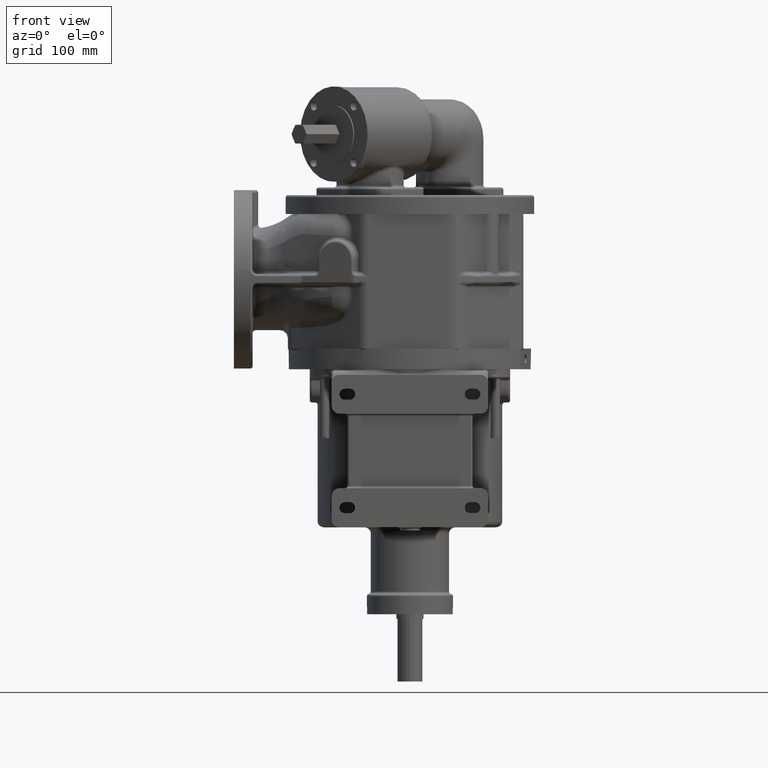
[diagram: clean part render]
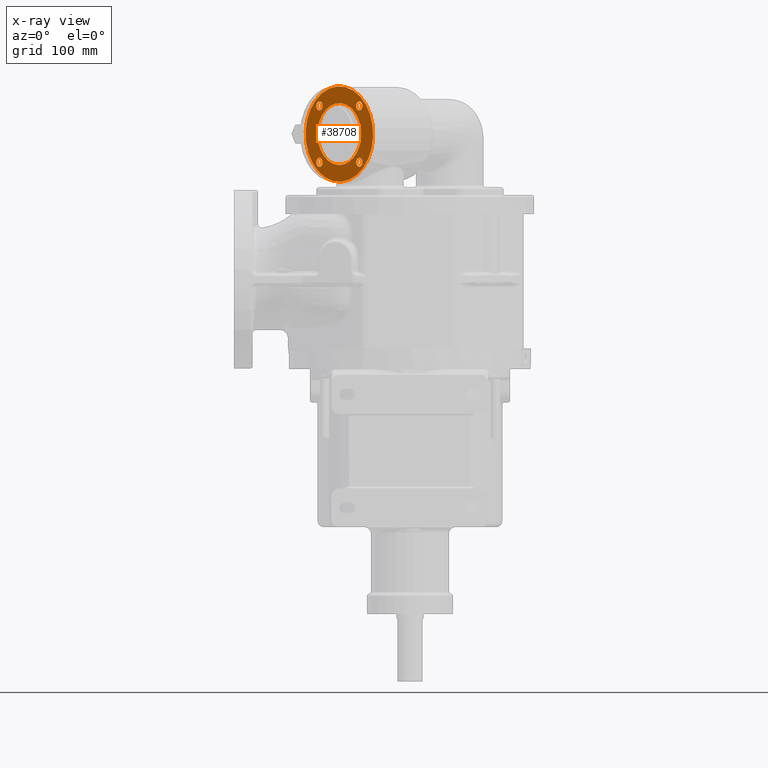
[diagram: x-ray — body ghosted, one internal face saturated and labeled with its STEP entity id]
A machine part, front view, then the same camera in x-ray: the body is ghosted and one INTERNAL B-rep face — a face not visible from any outside direction — is saturated and labeled: STEP entity #38708.
In plain terms, the highlighted planar face has unit normal (0.7071, 0.7071, 0).
Its self-contained STEP definition (entity closure, byte-faithful):
#4786=CARTESIAN_POINT('',(-9.015611460128E1,-9.015611460128E1,2.705E2));
#4787=DIRECTION('',(7.071067811865E-1,7.071067811865E-1,0.E0));
#4788=DIRECTION('',(-5.E-1,5.E-1,-7.071067811865E-1));
#4789=AXIS2_PLACEMENT_3D('',#4786,#4787,#4788);
#4791=CARTESIAN_POINT('',(-9.015611460128E1,-9.015611460128E1,2.705E2));
#4792=DIRECTION('',(-7.071067811865E-1,-7.071067811865E-1,0.E0));
#4793=DIRECTION('',(-5.E-1,5.E-1,-7.071067811865E-1));
#4794=AXIS2_PLACEMENT_3D('',#4791,#4792,#4793);
#4796=CARTESIAN_POINT('',(-1.156561146013E2,-6.465611460128E1,
3.065624458405E2));
#4797=DIRECTION('',(7.071067811865E-1,7.071067811865E-1,0.E0));
#4798=DIRECTION('',(5.E-1,-5.E-1,7.071067811865E-1));
#4799=AXIS2_PLACEMENT_3D('',#4796,#4797,#4798);
#4801=CARTESIAN_POINT('',(-1.156561146013E2,-6.465611460128E1,
3.065624458405E2));
#4802=DIRECTION('',(7.071067811865E-1,7.071067811865E-1,0.E0));
#4803=DIRECTION('',(-5.E-1,5.E-1,-7.071067811866E-1));
#4804=AXIS2_PLACEMENT_3D('',#4801,#4802,#4803);
#4806=CARTESIAN_POINT('',(-6.465611460128E1,-1.156561146013E2,
3.065624458405E2));
#4807=DIRECTION('',(7.071067811865E-1,7.071067811865E-1,0.E0));
#4808=DIRECTION('',(5.E-1,-5.E-1,-7.071067811866E-1));
#4809=AXIS2_PLACEMENT_3D('',#4806,#4807,#4808);
#4811=CARTESIAN_POINT('',(-6.465611460128E1,-1.156561146013E2,
3.065624458405E2));
#4812=DIRECTION('',(7.071067811865E-1,7.071067811865E-1,0.E0));
#4813=DIRECTION('',(-5.E-1,5.E-1,7.071067811865E-1));
#4814=AXIS2_PLACEMENT_3D('',#4811,#4812,#4813);
#4816=CARTESIAN_POINT('',(-6.465611460128E1,-1.156561146013E2,
2.344375541595E2));
#4817=DIRECTION('',(7.071067811865E-1,7.071067811865E-1,0.E0));
#4818=DIRECTION('',(-5.E-1,5.E-1,-7.071067811866E-1));
#4819=AXIS2_PLACEMENT_3D('',#4816,#4817,#4818);
#4821=CARTESIAN_POINT('',(-6.465611460128E1,-1.156561146013E2,
2.344375541595E2));
#4822=DIRECTION('',(7.071067811865E-1,7.071067811865E-1,0.E0));
#4823=DIRECTION('',(5.E-1,-5.E-1,7.071067811865E-1));
#4824=AXIS2_PLACEMENT_3D('',#4821,#4822,#4823);
#4826=CARTESIAN_POINT('',(-1.156561146013E2,-6.465611460128E1,
2.344375541595E2));
#4827=DIRECTION('',(7.071067811865E-1,7.071067811865E-1,0.E0));
#4828=DIRECTION('',(-5.E-1,5.E-1,7.071067811865E-1));
#4829=AXIS2_PLACEMENT_3D('',#4826,#4827,#4828);
#4831=CARTESIAN_POINT('',(-1.156561146013E2,-6.465611460128E1,
2.344375541595E2));
#4832=DIRECTION('',(7.071067811865E-1,7.071067811865E-1,0.E0));
#4833=DIRECTION('',(5.E-1,-5.E-1,-7.071067811866E-1));
#4834=AXIS2_PLACEMENT_3D('',#4831,#4832,#4833);
#4836=CARTESIAN_POINT('',(-9.015611460128E1,-9.015611460128E1,2.705E2));
#4837=DIRECTION('',(7.071067811865E-1,7.071067811865E-1,0.E0));
#4838=DIRECTION('',(5.E-1,-5.E-1,-7.071067811865E-1));
#4839=AXIS2_PLACEMENT_3D('',#4836,#4837,#4838);
#4850=CARTESIAN_POINT('',(-9.015611460128E1,-9.015611460128E1,2.705E2));
#4851=DIRECTION('',(7.071067811865E-1,7.071067811865E-1,0.E0));
#4852=DIRECTION('',(-5.E-1,5.E-1,7.071067811865E-1));
#4853=AXIS2_PLACEMENT_3D('',#4850,#4851,#4852);
#26743=CARTESIAN_POINT('',(-1.099061146013E2,-7.040611460128E1,
2.425692821431E2));
#26744=CARTESIAN_POINT('',(-7.040611460128E1,-1.099061146013E2,
2.984307178569E2));
#26745=VERTEX_POINT('',#26743);
#26746=VERTEX_POINT('',#26744);
#26755=CARTESIAN_POINT('',(-5.965611460128E1,-1.206561146013E2,
2.273664863476E2));
#26756=CARTESIAN_POINT('',(-1.206561146013E2,-5.965611460128E1,
3.136335136524E2));
#26757=VERTEX_POINT('',#26755);
#26758=VERTEX_POINT('',#26756);
#26771=CARTESIAN_POINT('',(-1.127811146013E2,-6.753111460128E1,
3.106283098323E2));
#26772=CARTESIAN_POINT('',(-1.185311146013E2,-6.178111460128E1,
3.024965818487E2));
#26773=VERTEX_POINT('',#26771);
#26774=VERTEX_POINT('',#26772);
#26779=CARTESIAN_POINT('',(-6.178111460128E1,-1.185311146013E2,
3.024965818487E2));
#26780=CARTESIAN_POINT('',(-6.753111460128E1,-1.127811146013E2,
3.106283098323E2));
#26781=VERTEX_POINT('',#26779);
#26782=VERTEX_POINT('',#26780);
#26787=CARTESIAN_POINT('',(-6.753111460128E1,-1.127811146013E2,
2.303716901677E2));
#26788=CARTESIAN_POINT('',(-6.178111460128E1,-1.185311146013E2,
2.385034181513E2));
#26789=VERTEX_POINT('',#26787);
#26790=VERTEX_POINT('',#26788);
#26795=CARTESIAN_POINT('',(-1.185311146013E2,-6.178111460128E1,
2.385034181513E2));
#26796=CARTESIAN_POINT('',(-1.127811146013E2,-6.753111460128E1,
2.303716901677E2));
#26797=VERTEX_POINT('',#26795);
#26798=VERTEX_POINT('',#26796);
#38669=CARTESIAN_POINT('',(-9.015611460128E1,-9.015611460128E1,2.705E2));
#38670=DIRECTION('',(7.071067811865E-1,7.071067811865E-1,0.E0));
#38671=DIRECTION('',(-5.E-1,5.E-1,-7.071067811865E-1));
#38672=AXIS2_PLACEMENT_3D('',#38669,#38670,#38671);
#38673=PLANE('',#38672);
#38675=ORIENTED_EDGE('',*,*,#38674,.F.);
#38677=ORIENTED_EDGE('',*,*,#38676,.F.);
#38678=EDGE_LOOP('',(#38675,#38677));
#38679=FACE_OUTER_BOUND('',#38678,.F.);
#38680=ORIENTED_EDGE('',*,*,#38649,.T.);
#38681=ORIENTED_EDGE('',*,*,#38663,.F.);
#38682=EDGE_LOOP('',(#38680,#38681));
#38683=FACE_BOUND('',#38682,.F.);
#38685=ORIENTED_EDGE('',*,*,#38684,.T.);
#38687=ORIENTED_EDGE('',*,*,#38686,.T.);
#38688=EDGE_LOOP('',(#38685,#38687));
#38689=FACE_BOUND('',#38688,.F.);
#38691=ORIENTED_EDGE('',*,*,#38690,.T.);
#38693=ORIENTED_EDGE('',*,*,#38692,.T.);
#38694=EDGE_LOOP('',(#38691,#38693));
#38695=FACE_BOUND('',#38694,.F.);
#38697=ORIENTED_EDGE('',*,*,#38696,.T.);
#38699=ORIENTED_EDGE('',*,*,#38698,.T.);
#38700=EDGE_LOOP('',(#38697,#38699));
#38701=FACE_BOUND('',#38700,.F.);
#38703=ORIENTED_EDGE('',*,*,#38702,.T.);
#38705=ORIENTED_EDGE('',*,*,#38704,.T.);
#38706=EDGE_LOOP('',(#38703,#38705));
#38707=FACE_BOUND('',#38706,.F.);
#38708=ADVANCED_FACE('',(#38679,#38683,#38689,#38695,#38701,#38707),#38673,.T.);
#4790=CIRCLE('',#4789,3.95E1);
#4795=CIRCLE('',#4794,3.95E1);
#4800=CIRCLE('',#4799,5.75E0);
#4805=CIRCLE('',#4804,5.75E0);
#4810=CIRCLE('',#4809,5.75E0);
#4815=CIRCLE('',#4814,5.75E0);
#4820=CIRCLE('',#4819,5.75E0);
#4825=CIRCLE('',#4824,5.75E0);
#4830=CIRCLE('',#4829,5.75E0);
#4835=CIRCLE('',#4834,5.75E0);
#4840=CIRCLE('',#4839,6.1E1);
#4854=CIRCLE('',#4853,6.1E1);
#38649=EDGE_CURVE('',#26745,#26746,#4790,.T.);
#38663=EDGE_CURVE('',#26745,#26746,#4795,.T.);
#38674=EDGE_CURVE('',#26757,#26758,#4840,.T.);
#38676=EDGE_CURVE('',#26758,#26757,#4854,.T.);
#38684=EDGE_CURVE('',#26773,#26774,#4800,.T.);
#38686=EDGE_CURVE('',#26774,#26773,#4805,.T.);
#38690=EDGE_CURVE('',#26781,#26782,#4810,.T.);
#38692=EDGE_CURVE('',#26782,#26781,#4815,.T.);
#38696=EDGE_CURVE('',#26789,#26790,#4820,.T.);
#38698=EDGE_CURVE('',#26790,#26789,#4825,.T.);
#38702=EDGE_CURVE('',#26797,#26798,#4830,.T.);
#38704=EDGE_CURVE('',#26798,#26797,#4835,.T.);